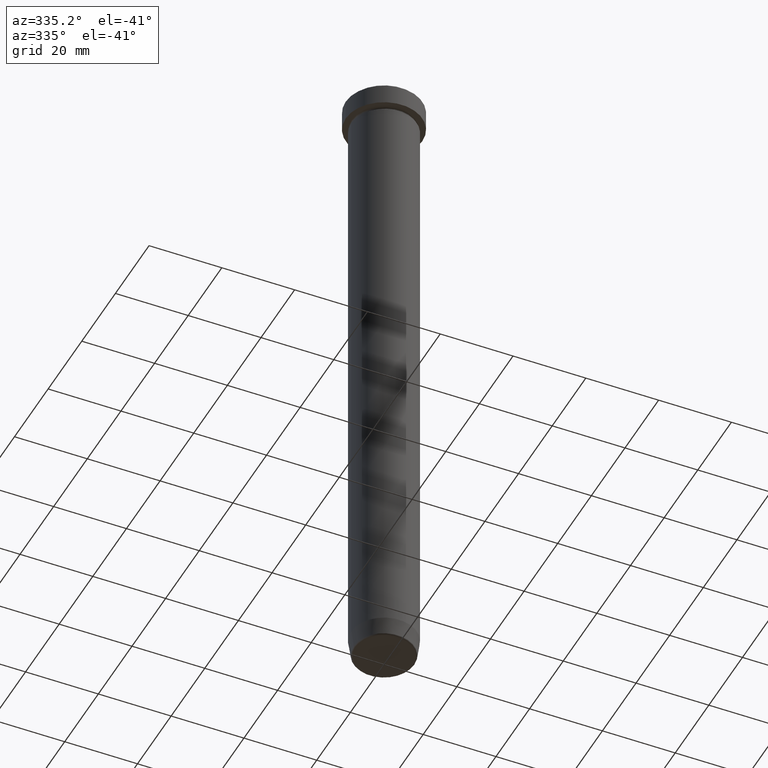
[diagram: clean part render]
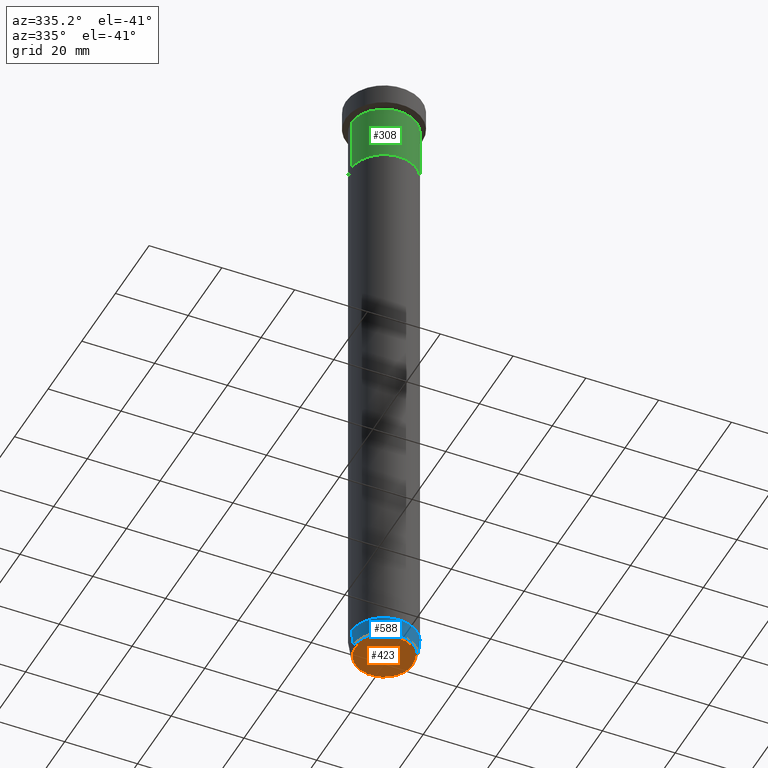
[diagram: same view with three faces highlighted in distinct colors, each labeled with its STEP entity id]
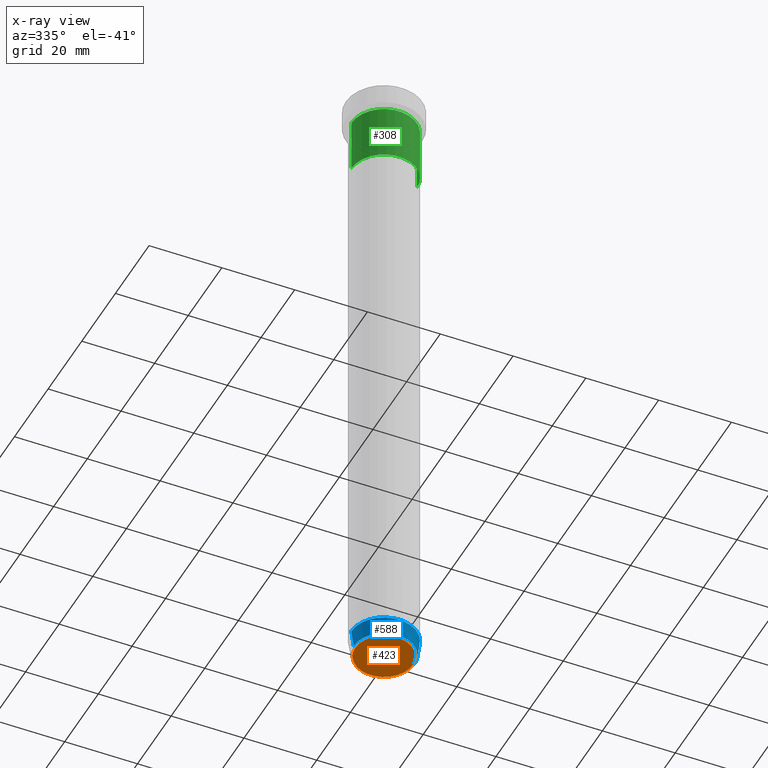
[diagram: x-ray of the same camera — body ghosted, the three highlighted faces saturated]
A machine part, auxiliary view with three faces highlighted in distinct colors.
The next image is the same camera in x-ray (body ghosted, the three faces saturated) — at least one of them is partly hidden behind the body in this view.
Their STEP definitions:

[orange] entity #423 — the highlighted planar face has unit normal (0, -0, 1).
#25 = FACE_OUTER_BOUND ( 'NONE', #326, .T. ) ;
#26 = DIRECTION ( 'NONE',  ( 0.000000000000000000, 0.000000000000000000, -1.000000000000000000 ) ) ;
#31 = PLANE ( 'NONE',  #104 ) ;
#65 = EDGE_CURVE ( 'NONE', #495, #386, #543, .T. ) ;
#104 = AXIS2_PLACEMENT_3D ( 'NONE', #310, #314, #500 ) ;
#115 = CIRCLE ( 'NONE', #249, 7.862652457579924814 ) ;
#145 = DIRECTION ( 'NONE',  ( 0.000000000000000000, 0.000000000000000000, -1.000000000000000000 ) ) ;
#249 = AXIS2_PLACEMENT_3D ( 'NONE', #358, #26, #399 ) ;
#283 = DIRECTION ( 'NONE',  ( 1.000000000000000000, 0.000000000000000000, 0.000000000000000000 ) ) ;
#295 = ORIENTED_EDGE ( 'NONE', *, *, #65, .T. ) ;
#310 = CARTESIAN_POINT ( 'NONE',  ( 0.000000000000000000, 1.224646799147353059E-14, -180.0000000000000000 ) ) ;
#314 = DIRECTION ( 'NONE',  ( 0.000000000000000000, -0.000000000000000000, 1.000000000000000000 ) ) ;
#326 = EDGE_LOOP ( 'NONE', ( #295, #412 ) ) ;
#358 = CARTESIAN_POINT ( 'NONE',  ( 0.000000000000000000, 0.000000000000000000, -180.0000000000000000 ) ) ;
#364 = CARTESIAN_POINT ( 'NONE',  ( 0.000000000000000000, 0.000000000000000000, -180.0000000000000000 ) ) ;
#386 = VERTEX_POINT ( 'NONE', #584 ) ;
#399 = DIRECTION ( 'NONE',  ( 1.000000000000000000, 0.000000000000000000, 0.000000000000000000 ) ) ;
#412 = ORIENTED_EDGE ( 'NONE', *, *, #492, .T. ) ;
#423 = ADVANCED_FACE ( 'NONE', ( #25 ), #31, .F. ) ;
#441 = AXIS2_PLACEMENT_3D ( 'NONE', #364, #145, #283 ) ;
#446 = CARTESIAN_POINT ( 'NONE',  ( 7.862652457579924814, 0.000000000000000000, -180.0000000000000000 ) ) ;
#492 = EDGE_CURVE ( 'NONE', #386, #495, #115, .T. ) ;
#495 = VERTEX_POINT ( 'NONE', #446 ) ;
#500 = DIRECTION ( 'NONE',  ( 1.000000000000000000, 0.000000000000000000, 0.000000000000000000 ) ) ;
#543 = CIRCLE ( 'NONE', #441, 7.862652457579924814 ) ;
#584 = CARTESIAN_POINT ( 'NONE',  ( -7.862652457579924814, 9.932154320153875890E-16, -180.0000000000000000 ) ) ;

[blue] entity #588 — the highlighted conical surface has half-angle 8 deg.
#6 = AXIS2_PLACEMENT_3D ( 'NONE', #279, #282, #413 ) ;
#12 = ORIENTED_EDGE ( 'NONE', *, *, #432, .F. ) ;
#20 = LINE ( 'NONE', #300, #351 ) ;
#29 = DIRECTION ( 'NONE',  ( -1.000000000000000000, 0.000000000000000000, 0.000000000000000000 ) ) ;
#30 = EDGE_CURVE ( 'NONE', #199, #220, #85, .T. ) ;
#32 = VECTOR ( 'NONE', #69, 1000.000000000000000 ) ;
#37 = CARTESIAN_POINT ( 'NONE',  ( 0.000000000000000000, 0.000000000000000000, -175.0000000000000000 ) ) ;
#44 = ORIENTED_EDGE ( 'NONE', *, *, #280, .T. ) ;
#54 = CARTESIAN_POINT ( 'NONE',  ( -8.357786491950713881, 1.062857883382530116E-15, -179.5695865504800111 ) ) ;
#69 = DIRECTION ( 'NONE',  ( -0.1391731009600659097, 1.704378926181561528E-17, 0.9902680687415702510 ) ) ;
#85 = CIRCLE ( 'NONE', #379, 9.000000000000000000 ) ;
#175 = FACE_OUTER_BOUND ( 'NONE', #542, .T. ) ;
#199 = VERTEX_POINT ( 'NONE', #303 ) ;
#205 = AXIS2_PLACEMENT_3D ( 'NONE', #449, #265, #29 ) ;
#220 = VERTEX_POINT ( 'NONE', #385 ) ;
#265 = DIRECTION ( 'NONE',  ( -0.000000000000000000, -0.000000000000000000, 1.000000000000000000 ) ) ;
#279 = CARTESIAN_POINT ( 'NONE',  ( 0.000000000000000000, 0.000000000000000000, -180.0000000000000000 ) ) ;
#280 = EDGE_CURVE ( 'NONE', #411, #220, #20, .T. ) ;
#282 = DIRECTION ( 'NONE',  ( -0.000000000000000000, -0.000000000000000000, 1.000000000000000000 ) ) ;
#300 = CARTESIAN_POINT ( 'NONE',  ( 8.297295826488038983, 0.000000000000000000, -180.0000000000000000 ) ) ;
#303 = CARTESIAN_POINT ( 'NONE',  ( -9.000000000000000000, 1.102182119232617714E-15, -175.0000000000000000 ) ) ;
#307 = CARTESIAN_POINT ( 'NONE',  ( -8.297295826488038983, 1.016125677548726948E-15, -180.0000000000000000 ) ) ;
#319 = DIRECTION ( 'NONE',  ( -0.000000000000000000, -0.000000000000000000, 1.000000000000000000 ) ) ;
#336 = CONICAL_SURFACE ( 'NONE', #6, 8.297295826488038983, 0.1396263401595468356 ) ;
#338 = DIRECTION ( 'NONE',  ( 0.1391731009600659097, 0.000000000000000000, 0.9902680687415702510 ) ) ;
#343 = VERTEX_POINT ( 'NONE', #54 ) ;
#351 = VECTOR ( 'NONE', #338, 1000.000000000000000 ) ;
#376 = ORIENTED_EDGE ( 'NONE', *, *, #453, .T. ) ;
#379 = AXIS2_PLACEMENT_3D ( 'NONE', #37, #319, #558 ) ;
#385 = CARTESIAN_POINT ( 'NONE',  ( 9.000000000000000000, 0.000000000000000000, -175.0000000000000000 ) ) ;
#411 = VERTEX_POINT ( 'NONE', #540 ) ;
#413 = DIRECTION ( 'NONE',  ( 1.000000000000000000, 0.000000000000000000, 0.000000000000000000 ) ) ;
#432 = EDGE_CURVE ( 'NONE', #343, #199, #579, .T. ) ;
#436 = ORIENTED_EDGE ( 'NONE', *, *, #30, .F. ) ;
#449 = CARTESIAN_POINT ( 'NONE',  ( 0.000000000000000000, 0.000000000000000000, -179.5695865504800111 ) ) ;
#453 = EDGE_CURVE ( 'NONE', #343, #411, #532, .T. ) ;
#532 = CIRCLE ( 'NONE', #205, 8.357786491950713881 ) ;
#540 = CARTESIAN_POINT ( 'NONE',  ( 8.357786491950713881, 0.000000000000000000, -179.5695865504800111 ) ) ;
#542 = EDGE_LOOP ( 'NONE', ( #12, #376, #44, #436 ) ) ;
#558 = DIRECTION ( 'NONE',  ( 1.000000000000000000, 0.000000000000000000, 0.000000000000000000 ) ) ;
#579 = LINE ( 'NONE', #307, #32 ) ;
#588 = ADVANCED_FACE ( 'NONE', ( #175 ), #336, .T. ) ;

[green] entity #308 — the highlighted cylindrical surface (edge-blend (fillet) strip) has radius 9 mm, axis along (-0, -0, 1).
#1 = EDGE_CURVE ( 'NONE', #506, #170, #214, .T. ) ;
#9 = FACE_OUTER_BOUND ( 'NONE', #414, .T. ) ;
#57 = CARTESIAN_POINT ( 'NONE',  ( 0.000000000000000000, 0.000000000000000000, 0.000000000000000000 ) ) ;
#79 = CIRCLE ( 'NONE', #248, 9.000000000000000000 ) ;
#93 = DIRECTION ( 'NONE',  ( -0.000000000000000000, -0.000000000000000000, 1.000000000000000000 ) ) ;
#94 = CARTESIAN_POINT ( 'NONE',  ( 0.000000000000000000, 0.000000000000000000, -7.000000000000000000 ) ) ;
#110 = ORIENTED_EDGE ( 'NONE', *, *, #120, .F. ) ;
#120 = EDGE_CURVE ( 'NONE', #170, #383, #79, .T. ) ;
#129 = ORIENTED_EDGE ( 'NONE', *, *, #527, .T. ) ;
#140 = CARTESIAN_POINT ( 'NONE',  ( 9.000000000000000000, 0.000000000000000000, -22.00000000000000000 ) ) ;
#169 = ORIENTED_EDGE ( 'NONE', *, *, #1, .F. ) ;
#170 = VERTEX_POINT ( 'NONE', #416 ) ;
#174 = DIRECTION ( 'NONE',  ( -0.000000000000000000, -0.000000000000000000, 1.000000000000000000 ) ) ;
#178 = DIRECTION ( 'NONE',  ( 1.000000000000000000, 0.000000000000000000, 0.000000000000000000 ) ) ;
#183 = VERTEX_POINT ( 'NONE', #140 ) ;
#197 = CYLINDRICAL_SURFACE ( 'NONE', #346, 9.000000000000000000 ) ;
#201 = DIRECTION ( 'NONE',  ( 1.000000000000000000, 0.000000000000000000, 0.000000000000000000 ) ) ;
#214 = LINE ( 'NONE', #573, #461 ) ;
#248 = AXIS2_PLACEMENT_3D ( 'NONE', #94, #426, #289 ) ;
#252 = CARTESIAN_POINT ( 'NONE',  ( 9.000000000000000000, 0.000000000000000000, 0.000000000000000000 ) ) ;
#260 = VECTOR ( 'NONE', #569, 1000.000000000000000 ) ;
#289 = DIRECTION ( 'NONE',  ( 1.000000000000000000, 0.000000000000000000, 0.000000000000000000 ) ) ;
#308 = ADVANCED_FACE ( 'NONE', ( #9 ), #197, .T. ) ;
#320 = EDGE_CURVE ( 'NONE', #183, #383, #381, .T. ) ;
#346 = AXIS2_PLACEMENT_3D ( 'NONE', #57, #378, #201 ) ;
#378 = DIRECTION ( 'NONE',  ( -0.000000000000000000, -0.000000000000000000, 1.000000000000000000 ) ) ;
#381 = LINE ( 'NONE', #252, #260 ) ;
#383 = VERTEX_POINT ( 'NONE', #442 ) ;
#401 = CARTESIAN_POINT ( 'NONE',  ( -9.000000000000000000, 1.102182119232617714E-15, -22.00000000000000000 ) ) ;
#414 = EDGE_LOOP ( 'NONE', ( #169, #129, #528, #110 ) ) ;
#416 = CARTESIAN_POINT ( 'NONE',  ( -9.000000000000000000, 1.102182119232617714E-15, -7.000000000000000000 ) ) ;
#426 = DIRECTION ( 'NONE',  ( -0.000000000000000000, -0.000000000000000000, 1.000000000000000000 ) ) ;
#442 = CARTESIAN_POINT ( 'NONE',  ( 9.000000000000000000, 0.000000000000000000, -7.000000000000000000 ) ) ;
#452 = CIRCLE ( 'NONE', #487, 9.000000000000000000 ) ;
#461 = VECTOR ( 'NONE', #174, 1000.000000000000000 ) ;
#487 = AXIS2_PLACEMENT_3D ( 'NONE', #505, #93, #178 ) ;
#505 = CARTESIAN_POINT ( 'NONE',  ( 0.000000000000000000, 0.000000000000000000, -22.00000000000000000 ) ) ;
#506 = VERTEX_POINT ( 'NONE', #401 ) ;
#527 = EDGE_CURVE ( 'NONE', #506, #183, #452, .T. ) ;
#528 = ORIENTED_EDGE ( 'NONE', *, *, #320, .T. ) ;
#569 = DIRECTION ( 'NONE',  ( -0.000000000000000000, -0.000000000000000000, 1.000000000000000000 ) ) ;
#573 = CARTESIAN_POINT ( 'NONE',  ( -9.000000000000000000, 1.102182119232617714E-15, 0.000000000000000000 ) ) ;